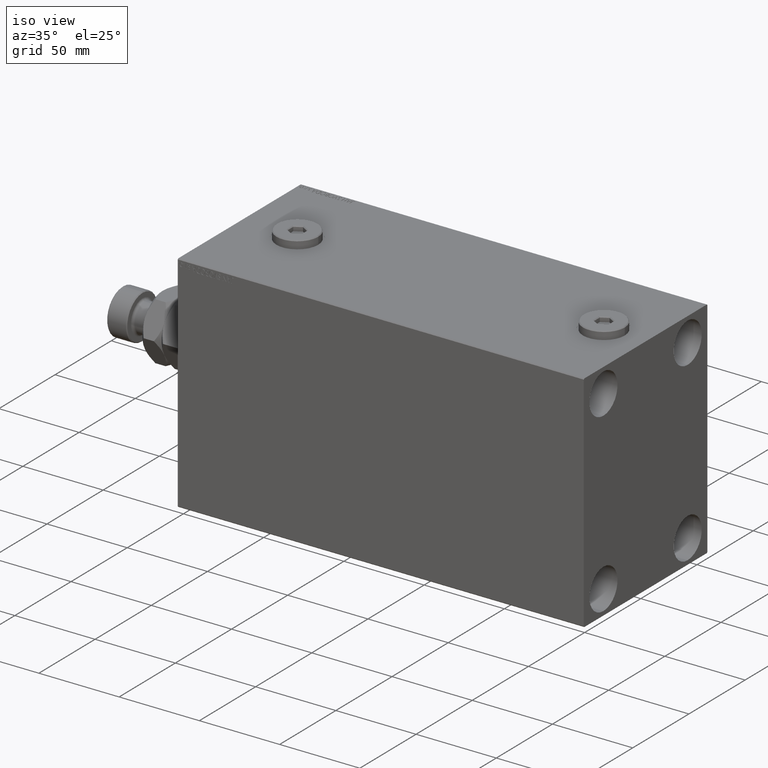
[diagram: clean part render]
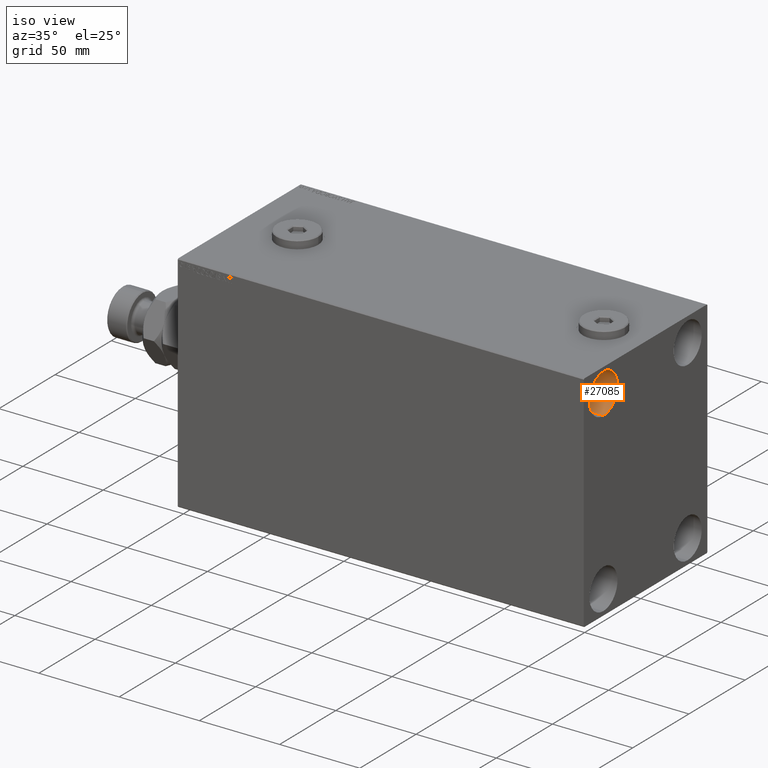
[diagram: same view with one face highlighted and labeled with its STEP entity id]
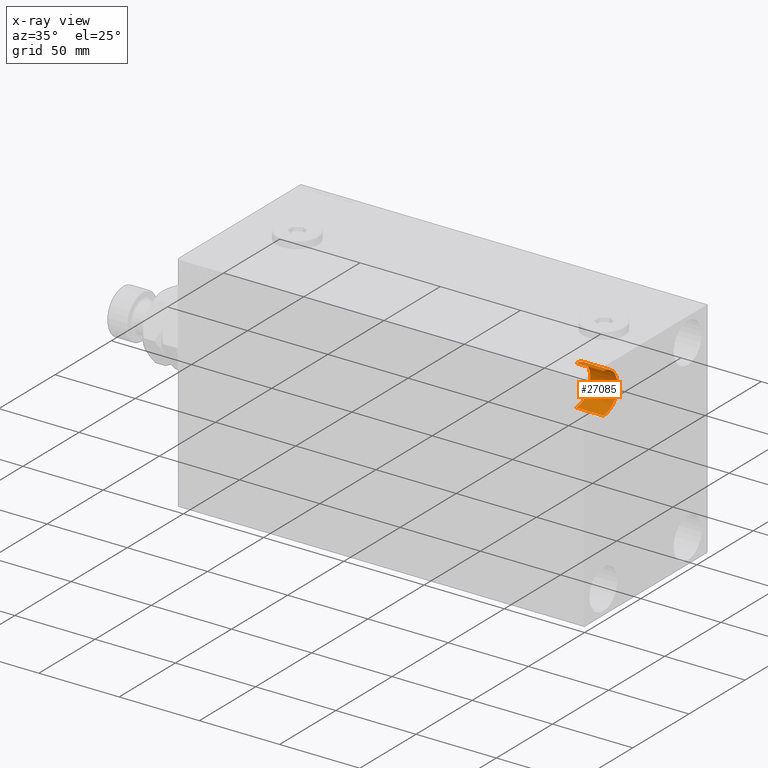
[diagram: x-ray of the same camera — body ghosted, the highlighted face saturated]
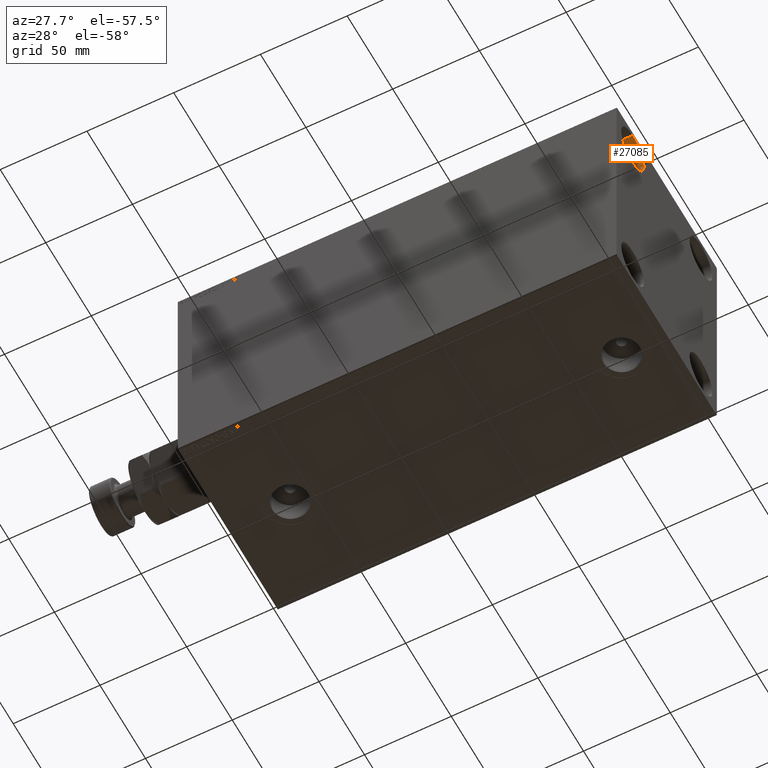
[diagram: same view with one face highlighted and labeled with its STEP entity id]
A machine part, iso view. The second image highlights one B-rep face of the part: STEP entity #27085.
The next image is the same camera in x-ray: the body ghosted, the highlighted face saturated — about 0% of this face is hidden behind the body in this view.
A second angle (auxiliary view) of the same face is appended — the face is thin or edge-on in the first view.
In plain terms, the highlighted cylindrical surface (edge-blend (fillet) strip) has radius 12.5 mm, axis along (1, 0, 0).
Its self-contained STEP definition (entity closure, byte-faithful):
#1094 = AXIS2_PLACEMENT_3D ( 'NONE', #32771, #26118, #11373 ) ;
#2103 = AXIS2_PLACEMENT_3D ( 'NONE', #8971, #19695, #16127 ) ;
#5527 = CARTESIAN_POINT ( 'NONE',  ( 236.0000000000000000, -37.50000000000000711, 42.50000000000000711 ) ) ;
#6627 = ORIENTED_EDGE ( 'NONE', *, *, #34748, .T. ) ;
#6945 = EDGE_CURVE ( 'NONE', #27224, #39798, #13870, .T. ) ;
#8181 = CIRCLE ( 'NONE', #2103, 12.49999999999999645 ) ;
#8348 = VECTOR ( 'NONE', #13353, 1000.000000000000000 ) ;
#8971 = CARTESIAN_POINT ( 'NONE',  ( 236.0000000000000000, -37.50000000000000711, 55.00000000000000711 ) ) ;
#9582 = LINE ( 'NONE', #5527, #17534 ) ;
#10201 = VERTEX_POINT ( 'NONE', #42529 ) ;
#11373 = DIRECTION ( 'NONE',  ( 0.000000000000000000, 0.000000000000000000, -1.000000000000000000 ) ) ;
#11593 = AXIS2_PLACEMENT_3D ( 'NONE', #36937, #12187, #15997 ) ;
#12187 = DIRECTION ( 'NONE',  ( -1.000000000000000000, -0.000000000000000000, -0.000000000000000000 ) ) ;
#13353 = DIRECTION ( 'NONE',  ( 1.000000000000000000, -0.000000000000000000, -0.000000000000000000 ) ) ;
#13870 = CIRCLE ( 'NONE', #11593, 12.49999999999999645 ) ;
#15997 = DIRECTION ( 'NONE',  ( 0.000000000000000000, 0.000000000000000000, 1.000000000000000000 ) ) ;
#16127 = DIRECTION ( 'NONE',  ( 0.000000000000000000, 0.000000000000000000, 1.000000000000000000 ) ) ;
#17534 = VECTOR ( 'NONE', #27416, 1000.000000000000000 ) ;
#19695 = DIRECTION ( 'NONE',  ( -1.000000000000000000, -0.000000000000000000, -0.000000000000000000 ) ) ;
#20253 = LINE ( 'NONE', #45914, #8348 ) ;
#20880 = CARTESIAN_POINT ( 'NONE',  ( 253.0000000000000000, -37.50000000000000711, 42.50000000000000711 ) ) ;
#21859 = CYLINDRICAL_SURFACE ( 'NONE', #1094, 12.49999999999999645 ) ;
#22452 = CARTESIAN_POINT ( 'NONE',  ( 253.0000000000000000, -37.50000000000000711, 67.50000000000000000 ) ) ;
#26118 = DIRECTION ( 'NONE',  ( 1.000000000000000000, -0.000000000000000000, -0.000000000000000000 ) ) ;
#27085 = ADVANCED_FACE ( 'NONE', ( #35649 ), #21859, .F. ) ;
#27224 = VERTEX_POINT ( 'NONE', #22452 ) ;
#27416 = DIRECTION ( 'NONE',  ( 1.000000000000000000, -0.000000000000000000, -0.000000000000000000 ) ) ;
#29908 = VERTEX_POINT ( 'NONE', #42540 ) ;
#31027 = EDGE_LOOP ( 'NONE', ( #31198, #6627, #33930, #36982 ) ) ;
#31198 = ORIENTED_EDGE ( 'NONE', *, *, #44548, .F. ) ;
#32771 = CARTESIAN_POINT ( 'NONE',  ( 236.0000000000000000, -37.50000000000000711, 55.00000000000000711 ) ) ;
#33930 = ORIENTED_EDGE ( 'NONE', *, *, #47080, .T. ) ;
#34748 = EDGE_CURVE ( 'NONE', #29908, #10201, #8181, .T. ) ;
#35649 = FACE_OUTER_BOUND ( 'NONE', #31027, .T. ) ;
#36937 = CARTESIAN_POINT ( 'NONE',  ( 253.0000000000000000, -37.50000000000000711, 55.00000000000000711 ) ) ;
#36982 = ORIENTED_EDGE ( 'NONE', *, *, #6945, .F. ) ;
#39798 = VERTEX_POINT ( 'NONE', #20880 ) ;
#42529 = CARTESIAN_POINT ( 'NONE',  ( 236.0000000000000000, -37.50000000000000711, 42.50000000000000711 ) ) ;
#42540 = CARTESIAN_POINT ( 'NONE',  ( 236.0000000000000000, -37.50000000000000711, 67.50000000000000000 ) ) ;
#44548 = EDGE_CURVE ( 'NONE', #29908, #27224, #20253, .T. ) ;
#45914 = CARTESIAN_POINT ( 'NONE',  ( 236.0000000000000000, -37.50000000000000711, 67.50000000000000000 ) ) ;
#47080 = EDGE_CURVE ( 'NONE', #10201, #39798, #9582, .T. ) ;